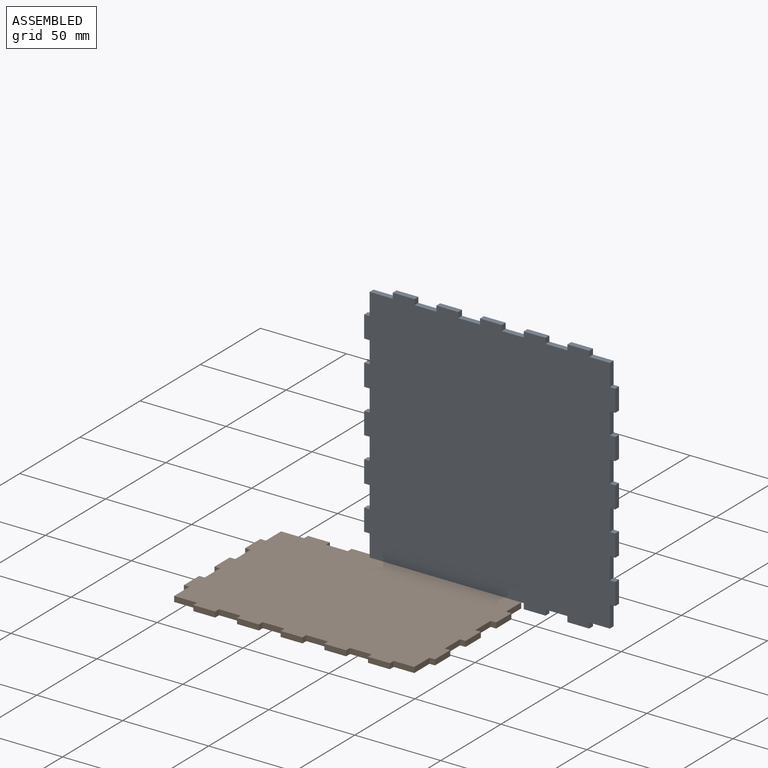
[diagram: assembled view]
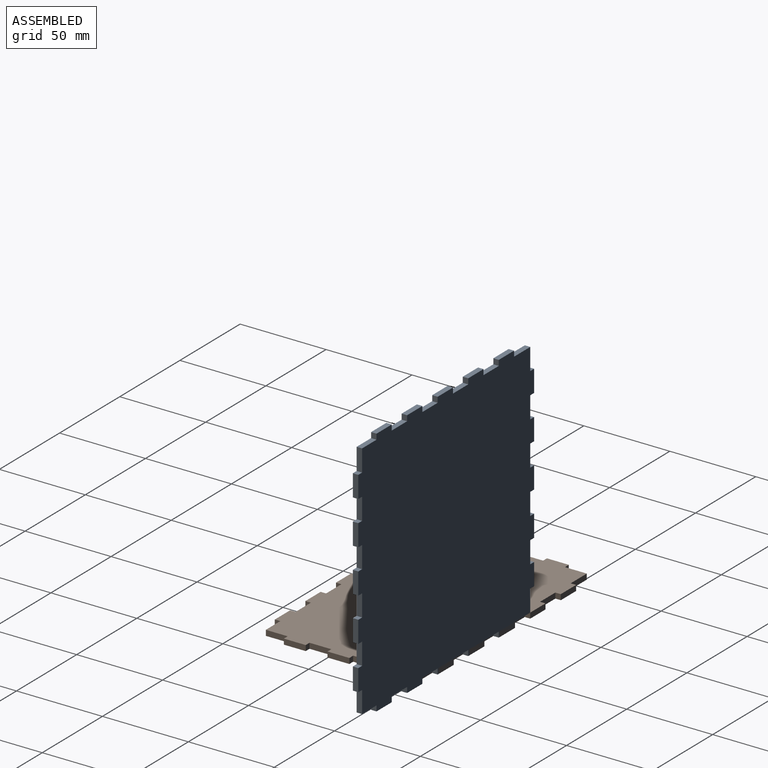
[diagram: assembled view, second angle]
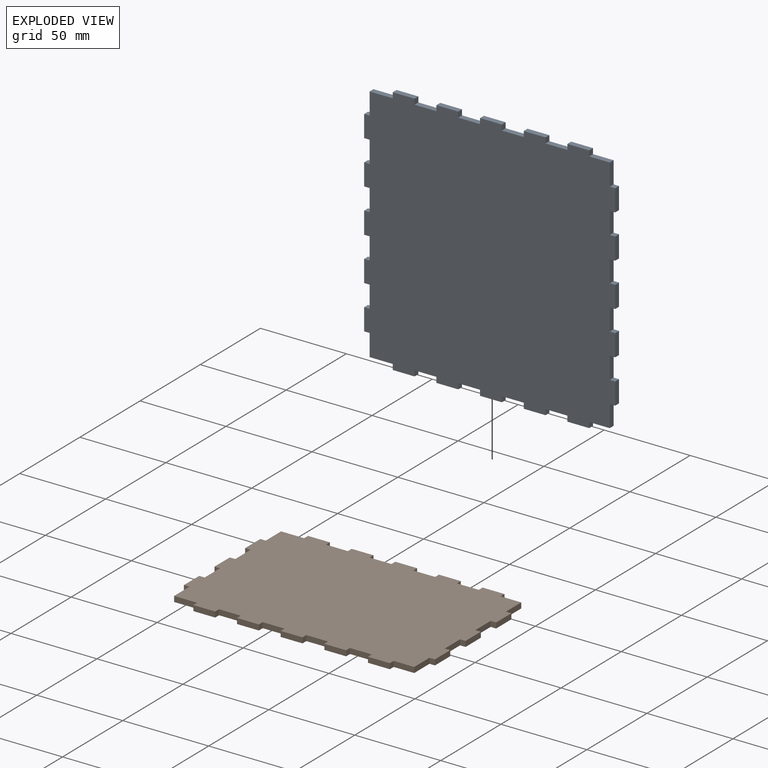
[diagram: exploded view]
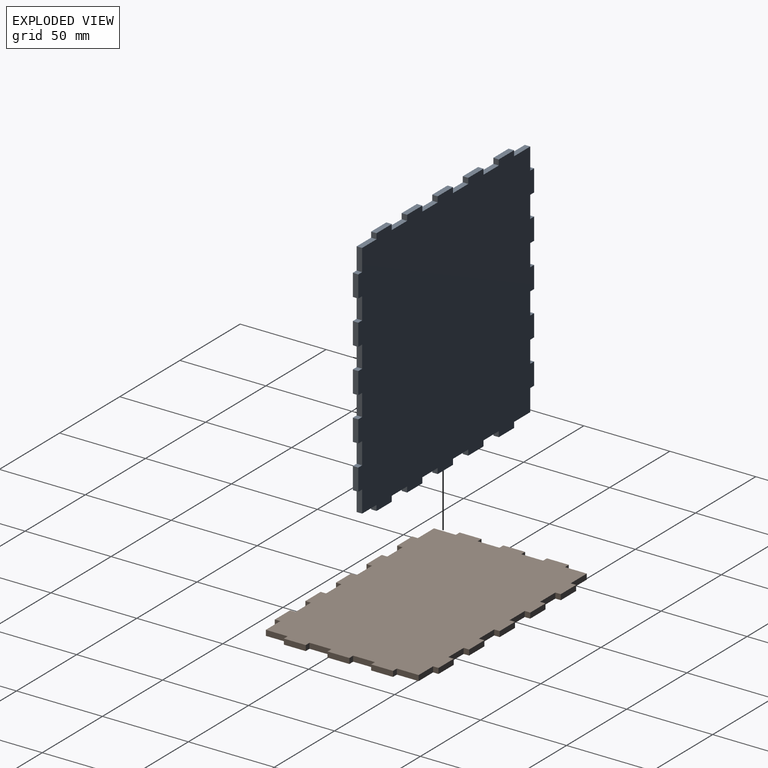
[diagram: exploded view, second angle]
ASSEMBLY  parts=2 mates=2
PART A: 86 faces, bbox 146.1x146.1x3.2 mm
  f0: plane 12.7x3.18mm, normal (0,1,0), area 40.3mm2, adj f24,f25,f82,f83
  f1: plane 12.7x3.18mm, normal (0,1,0), area 40.3mm2, adj f24,f25,f79,f80
  f2: plane 12.7x3.18mm, normal (0,1,0), area 40.3mm2, adj f24,f25,f76,f77
  f3: plane 12.7x3.18mm, normal (0,1,0), area 40.3mm2, adj f24,f25,f73,f74
  f4: plane 13.43x3.18mm, normal (0,1,0), area 42.6mm2, adj f22,f24,f25,f71
  f5: plane 12.7x3.18mm, normal (-1,0,0), area 40.3mm2, adj f24,f25,f67,f68
  f6: plane 12.7x3.18mm, normal (-1,0,0), area 40.3mm2, adj f24,f25,f64,f65
  f7: plane 12.7x3.18mm, normal (-1,0,0), area 40.3mm2, adj f24,f25,f61,f62
  f8: plane 12.7x3.18mm, normal (-1,0,0), area 40.3mm2, adj f24,f25,f58,f59
  f9: plane 12.7x3.18mm, normal (-1,0,0), area 40.3mm2, adj f19,f24,f25,f56
  f10: plane 12.7x3.18mm, normal (1,0,0), area 40.3mm2, adj f24,f25,f52,f53
  f11: plane 12.7x3.18mm, normal (1,0,0), area 40.3mm2, adj f24,f25,f49,f50
  f12: plane 12.7x3.18mm, normal (1,0,0), area 40.3mm2, adj f24,f25,f46,f47
  f13: plane 12.7x3.18mm, normal (1,0,0), area 40.3mm2, adj f24,f25,f43,f44
  f14: plane 12.7x3.18mm, normal (1,0,0), area 40.3mm2, adj f23,f24,f25,f41
  f15: plane 12.7x3.18mm, normal (0,-1,0), area 40.3mm2, adj f24,f25,f37,f38
  f16: plane 12.7x3.18mm, normal (0,-1,0), area 40.3mm2, adj f24,f25,f34,f35
  f17: plane 12.7x3.18mm, normal (0,-1,0), area 40.3mm2, adj f24,f25,f31,f32
  f18: plane 12.7x3.18mm, normal (0,-1,0), area 40.3mm2, adj f24,f25,f28,f29
  f19: plane 13.43x3.18mm, normal (0,-1,0), area 42.6mm2, adj f9,f24,f25,f26
  f20: plane 12.7x3.18mm, normal (1,0,0), area 40.3mm2, adj f21,f24,f25,f55
  f21: plane 11.97x3.18mm, normal (0,1,0), area 38mm2, adj f20,f24,f25,f85
  f22: plane 12.7x3.18mm, normal (-1,0,0), area 40.3mm2, adj f4,f24,f25,f70
  f23: plane 11.97x3.18mm, normal (0,-1,0), area 38mm2, adj f14,f24,f25,f40
  f24: plane 146.05x146.05mm, normal (0,0,1), area 20322.5mm2, adj f0,f1,f2,f3,f4,f5,f6,f7
  f25: plane 146.05x146.05mm, normal (0,0,-1), area 20322.5mm2, adj f0,f1,f2,f3,f4,f5,f6,f7
  f26: plane 3.18x3.18mm, normal (-1,0,0), area 10.1mm2, adj f19,f24,f25,f27
  f27: plane 12.7x3.18mm, normal (0,-1,0), area 40.3mm2, adj f24,f25,f26,f28
  f28: plane 3.18x3.18mm, normal (1,0,0), area 10.1mm2, adj f18,f24,f25,f27
  f29: plane 3.18x3.18mm, normal (-1,0,0), area 10.1mm2, adj f18,f24,f25,f30
  f30: plane 12.7x3.18mm, normal (0,-1,0), area 40.3mm2, adj f24,f25,f29,f31
  f31: plane 3.18x3.18mm, normal (1,0,0), area 10.1mm2, adj f17,f24,f25,f30
  f32: plane 3.18x3.18mm, normal (-1,0,0), area 10.1mm2, adj f17,f24,f25,f33
  f33: plane 12.7x3.18mm, normal (0,-1,0), area 40.3mm2, adj f24,f25,f32,f34
  f34: plane 3.18x3.18mm, normal (1,0,0), area 10.1mm2, adj f16,f24,f25,f33
  f35: plane 3.18x3.18mm, normal (-1,0,0), area 10.1mm2, adj f16,f24,f25,f36
  f36: plane 12.7x3.18mm, normal (0,-1,0), area 40.3mm2, adj f24,f25,f35,f37
  f37: plane 3.18x3.18mm, normal (1,0,0), area 10.1mm2, adj f15,f24,f25,f36
  f38: plane 3.18x3.18mm, normal (-1,0,0), area 10.1mm2, adj f15,f24,f25,f39
  f39: plane 12.7x3.18mm, normal (0,-1,0), area 40.3mm2, adj f24,f25,f38,f40
  f40: plane 3.18x3.18mm, normal (1,0,0), area 10.1mm2, adj f23,f24,f25,f39
  f41: plane 3.18x3.18mm, normal (0,-1,0), area 10.1mm2, adj f14,f24,f25,f42
  f42: plane 12.7x3.18mm, normal (1,0,0), area 40.3mm2, adj f24,f25,f41,f43
  f43: plane 3.18x3.18mm, normal (0,1,0), area 10.1mm2, adj f13,f24,f25,f42
  f44: plane 3.18x3.18mm, normal (0,-1,0), area 10.1mm2, adj f13,f24,f25,f45
  f45: plane 12.7x3.18mm, normal (1,0,0), area 40.3mm2, adj f24,f25,f44,f46
  f46: plane 3.18x3.18mm, normal (0,1,0), area 10.1mm2, adj f12,f24,f25,f45
  f47: plane 3.18x3.18mm, normal (0,-1,0), area 10.1mm2, adj f12,f24,f25,f48
  f48: plane 12.7x3.18mm, normal (1,0,0), area 40.3mm2, adj f24,f25,f47,f49
  f49: plane 3.18x3.18mm, normal (0,1,0), area 10.1mm2, adj f11,f24,f25,f48
  f50: plane 3.18x3.18mm, normal (0,-1,0), area 10.1mm2, adj f11,f24,f25,f51
  f51: plane 12.7x3.18mm, normal (1,0,0), area 40.3mm2, adj f24,f25,f50,f52
  f52: plane 3.18x3.18mm, normal (0,1,0), area 10.1mm2, adj f10,f24,f25,f51
  f53: plane 3.18x3.18mm, normal (0,-1,0), area 10.1mm2, adj f10,f24,f25,f54
  f54: plane 12.7x3.18mm, normal (1,0,0), area 40.3mm2, adj f24,f25,f53,f55
  f55: plane 3.18x3.18mm, normal (0,1,0), area 10.1mm2, adj f20,f24,f25,f54
  f56: plane 3.18x3.18mm, normal (0,-1,0), area 10.1mm2, adj f9,f24,f25,f57
  f57: plane 12.7x3.18mm, normal (-1,0,0), area 40.3mm2, adj f24,f25,f56,f58
  f58: plane 3.18x3.18mm, normal (0,1,0), area 10.1mm2, adj f8,f24,f25,f57
  f59: plane 3.18x3.18mm, normal (0,-1,0), area 10.1mm2, adj f8,f24,f25,f60
  f60: plane 12.7x3.18mm, normal (-1,0,0), area 40.3mm2, adj f24,f25,f59,f61
  f61: plane 3.18x3.18mm, normal (0,1,0), area 10.1mm2, adj f7,f24,f25,f60
  f62: plane 3.18x3.18mm, normal (0,-1,0), area 10.1mm2, adj f7,f24,f25,f63
  f63: plane 12.7x3.18mm, normal (-1,0,0), area 40.3mm2, adj f24,f25,f62,f64
  f64: plane 3.18x3.18mm, normal (0,1,0), area 10.1mm2, adj f6,f24,f25,f63
  f65: plane 3.18x3.18mm, normal (0,-1,0), area 10.1mm2, adj f6,f24,f25,f66
  f66: plane 12.7x3.18mm, normal (-1,0,0), area 40.3mm2, adj f24,f25,f65,f67
  f67: plane 3.18x3.18mm, normal (0,1,0), area 10.1mm2, adj f5,f24,f25,f66
  f68: plane 3.18x3.18mm, normal (0,-1,0), area 10.1mm2, adj f5,f24,f25,f69
  f69: plane 12.7x3.18mm, normal (-1,0,0), area 40.3mm2, adj f24,f25,f68,f70
  f70: plane 3.18x3.18mm, normal (0,1,0), area 10.1mm2, adj f22,f24,f25,f69
  f71: plane 3.18x3.18mm, normal (-1,0,0), area 10.1mm2, adj f4,f24,f25,f72
  f72: plane 12.7x3.18mm, normal (0,1,0), area 40.3mm2, adj f24,f25,f71,f73
  f73: plane 3.18x3.18mm, normal (1,0,0), area 10.1mm2, adj f3,f24,f25,f72
  f74: plane 3.18x3.18mm, normal (-1,0,0), area 10.1mm2, adj f3,f24,f25,f75
  f75: plane 12.7x3.18mm, normal (0,1,0), area 40.3mm2, adj f24,f25,f74,f76
  f76: plane 3.18x3.18mm, normal (1,0,0), area 10.1mm2, adj f2,f24,f25,f75
  f77: plane 3.18x3.18mm, normal (-1,0,0), area 10.1mm2, adj f2,f24,f25,f78
  f78: plane 12.7x3.18mm, normal (0,1,0), area 40.3mm2, adj f24,f25,f77,f79
  f79: plane 3.18x3.18mm, normal (1,0,0), area 10.1mm2, adj f1,f24,f25,f78
  f80: plane 3.18x3.18mm, normal (-1,0,0), area 10.1mm2, adj f1,f24,f25,f81
  f81: plane 12.7x3.18mm, normal (0,1,0), area 40.3mm2, adj f24,f25,f80,f82
  f82: plane 3.18x3.18mm, normal (1,0,0), area 10.1mm2, adj f0,f24,f25,f81
  f83: plane 3.18x3.18mm, normal (-1,0,0), area 10.1mm2, adj f0,f24,f25,f84
  f84: plane 12.7x3.18mm, normal (0,1,0), area 40.3mm2, adj f24,f25,f83,f85
  f85: plane 3.18x3.18mm, normal (1,0,0), area 10.1mm2, adj f21,f24,f25,f84
PART B: 70 faces, bbox 146.1x95.3x3.2 mm
  f0: plane 12.7x3.18mm, normal (0,1,0), area 40.3mm2, adj f20,f21,f66,f67
  f1: plane 12.7x3.18mm, normal (0,1,0), area 40.3mm2, adj f20,f21,f63,f64
  f2: plane 12.7x3.18mm, normal (0,1,0), area 40.3mm2, adj f20,f21,f60,f61
  f3: plane 12.7x3.18mm, normal (0,1,0), area 40.3mm2, adj f20,f21,f57,f58
  f4: plane 13.43x3.18mm, normal (0,1,0), area 42.6mm2, adj f18,f20,f21,f55
  f5: plane 12.7x3.18mm, normal (-1,0,0), area 40.3mm2, adj f20,f21,f51,f52
  f6: plane 12.7x3.18mm, normal (-1,0,0), area 40.3mm2, adj f20,f21,f48,f49
  f7: plane 12.7x3.18mm, normal (-1,0,0), area 40.3mm2, adj f15,f20,f21,f46
  f8: plane 12.7x3.18mm, normal (1,0,0), area 40.3mm2, adj f20,f21,f42,f43
  f9: plane 12.7x3.18mm, normal (1,0,0), area 40.3mm2, adj f20,f21,f39,f40
  f10: plane 12.7x3.18mm, normal (1,0,0), area 40.3mm2, adj f19,f20,f21,f37
  f11: plane 12.7x3.18mm, normal (0,-1,0), area 40.3mm2, adj f20,f21,f33,f34
  f12: plane 12.7x3.18mm, normal (0,-1,0), area 40.3mm2, adj f20,f21,f30,f31
  f13: plane 12.7x3.18mm, normal (0,-1,0), area 40.3mm2, adj f20,f21,f27,f28
  f14: plane 12.7x3.18mm, normal (0,-1,0), area 40.3mm2, adj f20,f21,f24,f25
  f15: plane 13.43x3.18mm, normal (0,-1,0), area 42.6mm2, adj f7,f20,f21,f22
  f16: plane 12.7x3.18mm, normal (1,0,0), area 40.3mm2, adj f17,f20,f21,f45
  f17: plane 11.97x3.18mm, normal (0,1,0), area 38mm2, adj f16,f20,f21,f69
  f18: plane 12.7x3.18mm, normal (-1,0,0), area 40.3mm2, adj f4,f20,f21,f54
  f19: plane 11.97x3.18mm, normal (0,-1,0), area 38mm2, adj f10,f20,f21,f36
  f20: plane 146.05x95.25mm, normal (0,0,1), area 13064.5mm2, adj f0,f1,f2,f3,f4,f5,f6,f7
  f21: plane 146.05x95.25mm, normal (0,0,-1), area 13064.5mm2, adj f0,f1,f2,f3,f4,f5,f6,f7
  f22: plane 3.18x3.18mm, normal (-1,0,0), area 10.1mm2, adj f15,f20,f21,f23
  f23: plane 12.7x3.18mm, normal (0,-1,0), area 40.3mm2, adj f20,f21,f22,f24
  f24: plane 3.18x3.18mm, normal (1,0,0), area 10.1mm2, adj f14,f20,f21,f23
  f25: plane 3.18x3.18mm, normal (-1,0,0), area 10.1mm2, adj f14,f20,f21,f26
  f26: plane 12.7x3.18mm, normal (0,-1,0), area 40.3mm2, adj f20,f21,f25,f27
  f27: plane 3.18x3.18mm, normal (1,0,0), area 10.1mm2, adj f13,f20,f21,f26
  f28: plane 3.18x3.18mm, normal (-1,0,0), area 10.1mm2, adj f13,f20,f21,f29
  f29: plane 12.7x3.18mm, normal (0,-1,0), area 40.3mm2, adj f20,f21,f28,f30
  f30: plane 3.18x3.18mm, normal (1,0,0), area 10.1mm2, adj f12,f20,f21,f29
  f31: plane 3.18x3.18mm, normal (-1,0,0), area 10.1mm2, adj f12,f20,f21,f32
  f32: plane 12.7x3.18mm, normal (0,-1,0), area 40.3mm2, adj f20,f21,f31,f33
  f33: plane 3.18x3.18mm, normal (1,0,0), area 10.1mm2, adj f11,f20,f21,f32
  f34: plane 3.18x3.18mm, normal (-1,0,0), area 10.1mm2, adj f11,f20,f21,f35
  f35: plane 12.7x3.18mm, normal (0,-1,0), area 40.3mm2, adj f20,f21,f34,f36
  f36: plane 3.18x3.18mm, normal (1,0,0), area 10.1mm2, adj f19,f20,f21,f35
  f37: plane 3.18x3.18mm, normal (0,-1,0), area 10.1mm2, adj f10,f20,f21,f38
  f38: plane 12.7x3.18mm, normal (1,0,0), area 40.3mm2, adj f20,f21,f37,f39
  f39: plane 3.18x3.18mm, normal (0,1,0), area 10.1mm2, adj f9,f20,f21,f38
  f40: plane 3.18x3.18mm, normal (0,-1,0), area 10.1mm2, adj f9,f20,f21,f41
  f41: plane 12.7x3.18mm, normal (1,0,0), area 40.3mm2, adj f20,f21,f40,f42
  f42: plane 3.18x3.18mm, normal (0,1,0), area 10.1mm2, adj f8,f20,f21,f41
  f43: plane 3.18x3.18mm, normal (0,-1,0), area 10.1mm2, adj f8,f20,f21,f44
  f44: plane 12.7x3.18mm, normal (1,0,0), area 40.3mm2, adj f20,f21,f43,f45
  f45: plane 3.18x3.18mm, normal (0,1,0), area 10.1mm2, adj f16,f20,f21,f44
  f46: plane 3.18x3.18mm, normal (0,-1,0), area 10.1mm2, adj f7,f20,f21,f47
  f47: plane 12.7x3.18mm, normal (-1,0,0), area 40.3mm2, adj f20,f21,f46,f48
  f48: plane 3.18x3.18mm, normal (0,1,0), area 10.1mm2, adj f6,f20,f21,f47
  f49: plane 3.18x3.18mm, normal (0,-1,0), area 10.1mm2, adj f6,f20,f21,f50
  f50: plane 12.7x3.18mm, normal (-1,0,0), area 40.3mm2, adj f20,f21,f49,f51
  f51: plane 3.18x3.18mm, normal (0,1,0), area 10.1mm2, adj f5,f20,f21,f50
  f52: plane 3.18x3.18mm, normal (0,-1,0), area 10.1mm2, adj f5,f20,f21,f53
  f53: plane 12.7x3.18mm, normal (-1,0,0), area 40.3mm2, adj f20,f21,f52,f54
  f54: plane 3.18x3.18mm, normal (0,1,0), area 10.1mm2, adj f18,f20,f21,f53
  f55: plane 3.18x3.18mm, normal (-1,0,0), area 10.1mm2, adj f4,f20,f21,f56
  f56: plane 12.7x3.18mm, normal (0,1,0), area 40.3mm2, adj f20,f21,f55,f57
  f57: plane 3.18x3.18mm, normal (1,0,0), area 10.1mm2, adj f3,f20,f21,f56
  f58: plane 3.18x3.18mm, normal (-1,0,0), area 10.1mm2, adj f3,f20,f21,f59
  f59: plane 12.7x3.18mm, normal (0,1,0), area 40.3mm2, adj f20,f21,f58,f60
  f60: plane 3.18x3.18mm, normal (1,0,0), area 10.1mm2, adj f2,f20,f21,f59
  f61: plane 3.18x3.18mm, normal (-1,0,0), area 10.1mm2, adj f2,f20,f21,f62
  f62: plane 12.7x3.18mm, normal (0,1,0), area 40.3mm2, adj f20,f21,f61,f63
  f63: plane 3.18x3.18mm, normal (1,0,0), area 10.1mm2, adj f1,f20,f21,f62
  f64: plane 3.18x3.18mm, normal (-1,0,0), area 10.1mm2, adj f1,f20,f21,f65
  f65: plane 12.7x3.18mm, normal (0,1,0), area 40.3mm2, adj f20,f21,f64,f66
  f66: plane 3.18x3.18mm, normal (1,0,0), area 10.1mm2, adj f0,f20,f21,f65
  f67: plane 3.18x3.18mm, normal (-1,0,0), area 10.1mm2, adj f0,f20,f21,f68
  f68: plane 12.7x3.18mm, normal (0,1,0), area 40.3mm2, adj f20,f21,f67,f69
  f69: plane 3.18x3.18mm, normal (1,0,0), area 10.1mm2, adj f17,f20,f21,f68
PLACE A rot(axis=(1,0,0),90deg) t=(69.6,-141.29,60.88)mm
PLACE B t=(18.08,-188.91,-12.15)mm
MATE planar A.f25 <-> B.f68  axis (0,1,0) through (69.61,-141.29,60.88)mm
MATE planar A.f18 <-> B.f20  axis (0,0,-1) through (32.22,-142.88,-8.97)mm
